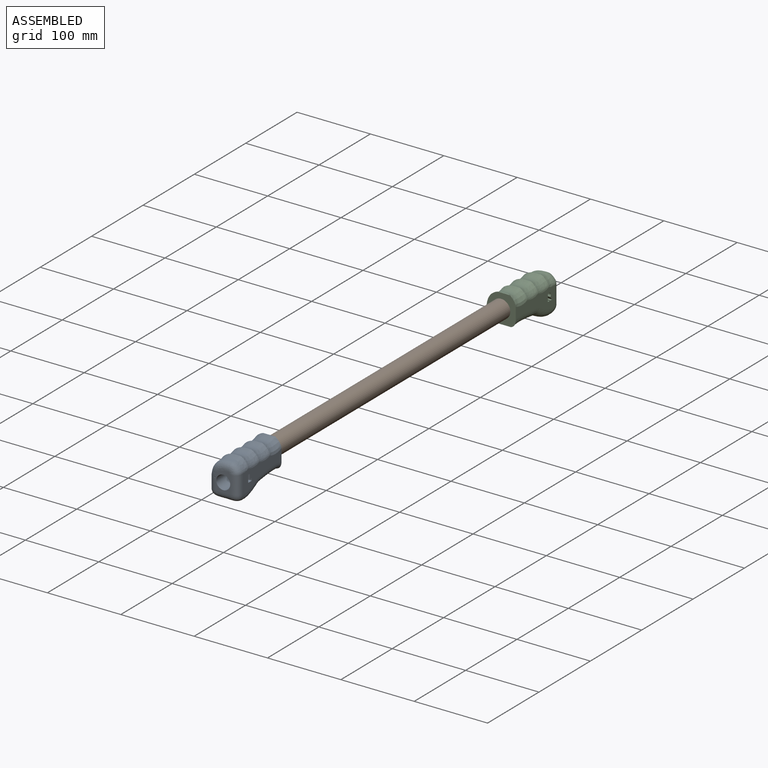
[diagram: assembled view]
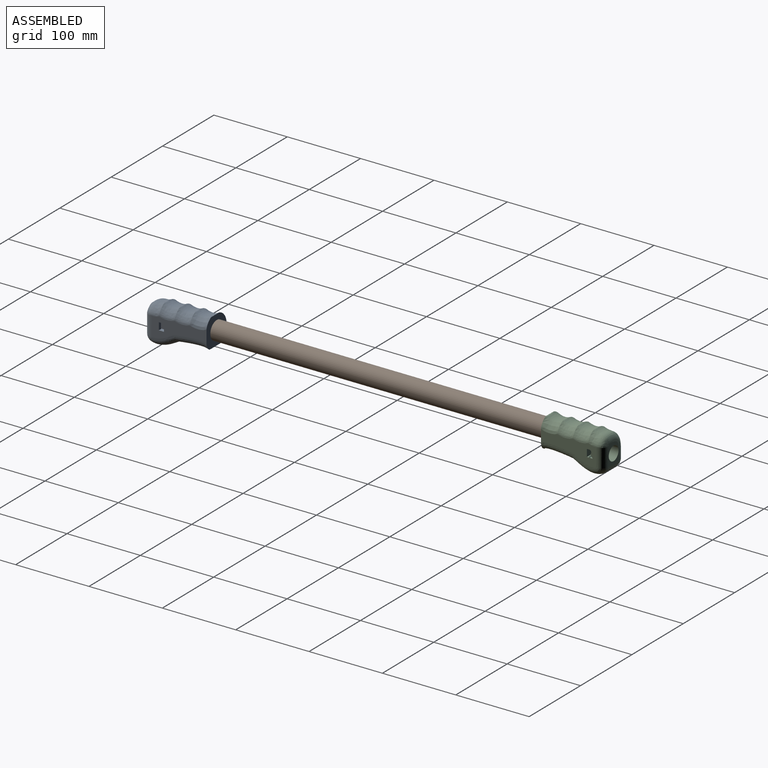
[diagram: assembled view, second angle]
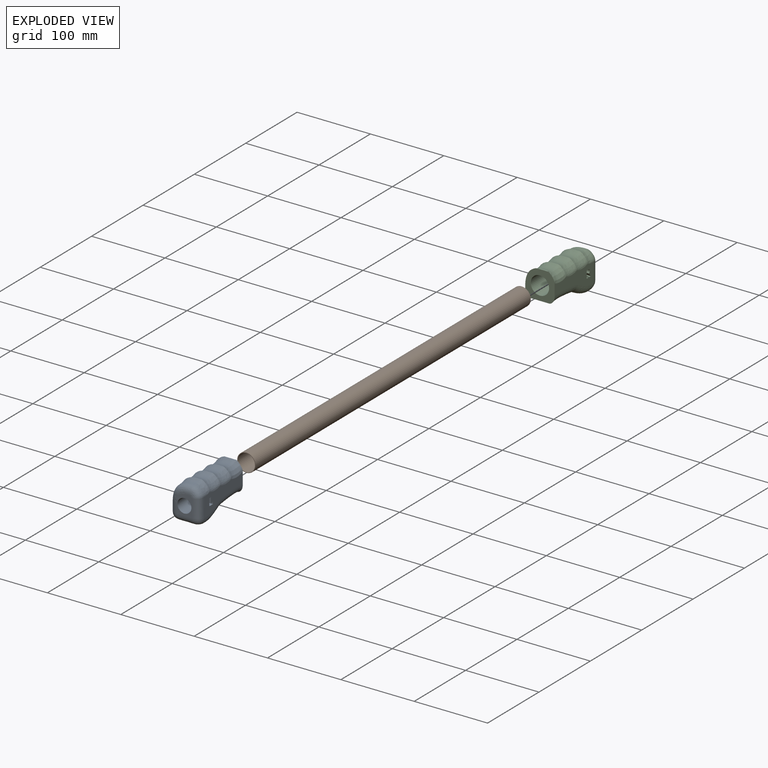
[diagram: exploded view]
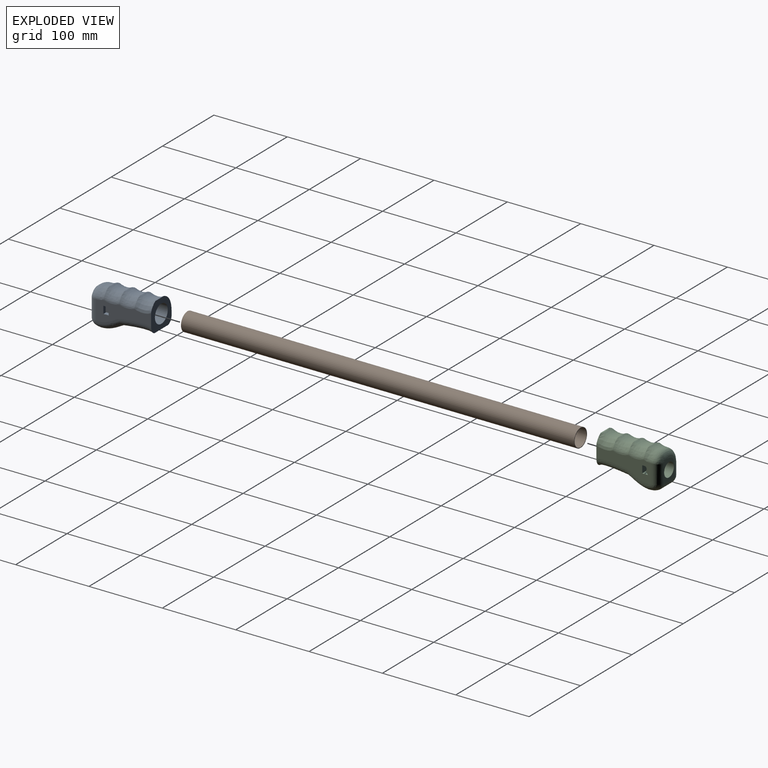
[diagram: exploded view, second angle]
ASSEMBLY  parts=3 mates=2
PART A: 46 faces, bbox 58.4x100.5x42.5 mm
  f0: extruded ~39.45x20mm, area 797.1mm2, adj f1,f2,f6,f39
  f1: bspline ~50.62x12.88mm, area 671.3mm2, adj f0,f5,f14,f28,f39
  f2: bspline ~50.82x13.08mm, area 671.3mm2, adj f0,f5,f15,f38,f39
  f3: cylinder r=21.22mm len=20mm, axis (0,0,-1), area 83.3mm2, adj f4,f13,f20,f24
  f4: plane 17.28x2.91mm, normal (-1,0,0), area 24.5mm2, adj f3,f5,f20,f24
  f5: plane 42.49x41.71mm, normal (0,-1,0), area 908.9mm2, adj f1,f2,f4,f14,f15,f16,f20,f24
  f6: extruded ~45x20mm, area 1063.3mm2, adj f0,f7,f28,f29,f37,f38
  f7: plane 28.03x20.53mm, normal (0,1,0), area 235.2mm2, adj f6,f18,f30,f31,f32,f34,f36
  f8: cylinder r=21.22mm len=10mm, axis (0,0,-1), area 41.7mm2, adj f9,f23,f27,f32
  f9: plane 10.39x1.23mm, normal (-1,0,0), area 8.1mm2, adj f8,f10,f22,f23,f26,f27
  f10: cylinder r=21.22mm len=20mm, axis (0,0,-1), area 83.3mm2, adj f9,f11,f22,f26
  f11: plane 10.38x1.22mm, normal (-1,0,0), area 8.1mm2, adj f10,f12,f21,f22,f25,f26
  f12: cylinder r=21.22mm len=20mm, axis (0,0,-1), area 83.3mm2, adj f11,f13,f21,f25
  f13: plane 10.39x1.23mm, normal (-1,0,0), area 8.1mm2, adj f3,f12,f20,f21,f24,f25
  f14: plane 76.37x17.34mm, normal (0,0,1), area 449.8mm2, adj f1,f5,f20,f21,f22,f23,f28,f30
  f15: plane 76.41x29.96mm, normal (0,0,-1), area 1319.6mm2, adj f2,f5,f24,f25,f26,f27,f36,f38
  f16: cylinder r=12.5mm len=40mm, axis (0,-1,0), area 3141.6mm2, adj f5,f17
  f17: plane 25x25mm, normal (0,-1,0), area 490.9mm2, adj f16
  f18: cylinder r=9.5mm len=35mm, axis (0,1,0), area 2044mm2, adj f7,f19,f40,f41,f42,f43,f44,f45
  f19: plane 19x19mm, normal (0,1,0), area 283.5mm2, adj f18
  f20: bspline ~60.07x31.92mm, area 893.1mm2, adj f3,f4,f5,f13,f14,f21
  f21: bspline ~61.29x29.68mm, area 832mm2, adj f11,f12,f13,f14,f20,f22
  f22: bspline ~59.58x29.87mm, area 832.1mm2, adj f9,f10,f11,f14,f21,f23
  f23: bspline ~26.71x24mm, area 416mm2, adj f8,f9,f14,f22,f31
  f24: bspline ~34.18x15.35mm, area 417.8mm2, adj f3,f4,f5,f13,f15,f25
  f25: bspline ~49.03x18.79mm, area 391.3mm2, adj f11,f12,f13,f15,f24,f26
  f26: bspline ~32.51x14.71mm, area 391.3mm2, adj f9,f10,f11,f15,f25,f27
  f27: bspline ~16.25x14.71mm, area 195.6mm2, adj f8,f9,f15,f26,f33,f34,f35
  f28: bspline ~39.99x20.9mm, area 653mm2, adj f1,f6,f14,f29
  f29: bspline ~10x10mm, area 74.3mm2, adj f6,f28,f30
  f30: bspline ~13.5x10mm, area 219mm2, adj f7,f14,f29,f31
  f31: bspline ~24x24mm, area 545.2mm2, adj f7,f23,f30,f32
  f32: bspline ~10x10mm, area 57.8mm2, adj f7,f8,f31,f33
  f33: bspline ~10x10mm, area 24.8mm2, adj f27,f32,f34
  f34: bspline ~12.05x12.05mm, area 132.6mm2, adj f7,f27,f33,f35
  f35: bspline ~10x10mm, area 24.8mm2, adj f27,f34,f36
  f36: bspline ~27.04x10mm, area 406.6mm2, adj f7,f15,f35,f37
  f37: bspline ~10x10mm, area 74.3mm2, adj f6,f36,f38
  f38: bspline ~39.99x20.92mm, area 653mm2, adj f2,f6,f15,f37
  f39: plane 27.42x0.8mm, normal (1,0,0), area 13.7mm2, adj f0,f1,f2,f5
  f40: plane 10.94x7mm, normal (-1,0,0), area 76.6mm2, adj f15,f18,f41,f45
  f41: plane 10.94x3mm, normal (0,1,0), area 31.9mm2, adj f15,f18,f40,f42
  f42: plane 10.5x4mm, normal (1,0,0), area 42mm2, adj f15,f18,f41,f43
  f43: plane 13.74x7mm, normal (0,1,0), area 80.6mm2, adj f15,f18,f42,f44
  f44: plane 13.74x3mm, normal (1,0,0), area 41.2mm2, adj f15,f18,f43,f45
  f45: plane 13.74x10mm, normal (0,-1,0), area 112.5mm2, adj f15,f18,f40,f44
PART B: 4 faces, bbox 25x536x25 mm
  f0: cylinder r=11.75mm len=536mm, axis (0,1,0), area 39571.5mm2, adj f2,f3
  f1: cylinder r=12.5mm len=536mm, axis (0,1,0), area 42097.3mm2, adj f2,f3
  f2: plane 25x25mm, normal (0,-1,0), area 57.1mm2, adj f0,f1
  f3: plane 25x25mm, normal (0,1,0), area 57.1mm2, adj f0,f1
PART C: 49 faces, bbox 58.2x100.4x42.4 mm
  f0: plane 76.41x29.96mm, normal (0,0,1), area 1305.5mm2, adj f3,f7,f21,f22,f23,f24,f25,f27
  f1: cylinder r=9.5mm len=35mm, axis (0,1,0), area 2026.9mm2, adj f9,f38,f40,f41,f42,f43,f44,f45
  f2: extruded ~39.45x20mm, area 797.1mm2, adj f3,f4,f8,f39
  f3: bspline ~50.62x12.88mm, area 671.3mm2, adj f0,f2,f7,f25,f39
  f4: bspline ~50.82x13.08mm, area 671.3mm2, adj f2,f7,f16,f35,f39
  f5: cylinder r=21.22mm len=20mm, axis (0,0,-1), area 83.3mm2, adj f6,f15,f17,f21
  f6: plane 17.28x2.92mm, normal (-1,0,0), area 24.4mm2, adj f5,f7,f17,f21
  f7: plane 42.36x41.58mm, normal (0,-1,0), area 909.8mm2, adj f0,f3,f4,f6,f16,f17,f21,f36
  f8: extruded ~45x20mm, area 1063.3mm2, adj f2,f9,f25,f26,f34,f35
  f9: plane 28.03x20.53mm, normal (0,1,0), area 235.9mm2, adj f1,f8,f27,f29,f31,f32,f33
  f10: cylinder r=21.22mm len=10mm, axis (0,0,-1), area 41.7mm2, adj f11,f20,f24,f31
  f11: plane 10.39x1.23mm, normal (-1,0,0), area 8.1mm2, adj f10,f12,f19,f20,f23,f24
  f12: cylinder r=21.22mm len=20mm, axis (0,0,-1), area 83.3mm2, adj f11,f13,f19,f23
  f13: plane 10.38x1.22mm, normal (-1,0,0), area 8.1mm2, adj f12,f14,f18,f19,f22,f23
  f14: cylinder r=21.22mm len=20mm, axis (0,0,-1), area 83.3mm2, adj f13,f15,f18,f22
  f15: plane 10.39x1.23mm, normal (-1,0,0), area 8.1mm2, adj f5,f14,f17,f18,f21,f22
  f16: plane 76.36x17.34mm, normal (0,0,-1), area 449.7mm2, adj f4,f7,f17,f18,f19,f20,f33,f35
  f17: bspline ~60.07x31.92mm, area 893.4mm2, adj f5,f6,f7,f15,f16,f18
  f18: bspline ~61.29x29.68mm, area 832.1mm2, adj f13,f14,f15,f16,f17,f19
  f19: bspline ~59.58x29.87mm, area 832.1mm2, adj f11,f12,f13,f16,f18,f20
  f20: bspline ~26.71x24mm, area 416.1mm2, adj f10,f11,f16,f19,f32
  f21: bspline ~34.18x15.35mm, area 417.8mm2, adj f0,f5,f6,f7,f15,f22
  f22: bspline ~49.03x18.79mm, area 391.3mm2, adj f0,f13,f14,f15,f21,f23
  f23: bspline ~32.51x14.71mm, area 391.3mm2, adj f0,f11,f12,f13,f22,f24
  f24: bspline ~16.25x14.71mm, area 195.6mm2, adj f0,f10,f11,f23,f28,f29,f30
  f25: bspline ~39.99x20.9mm, area 653mm2, adj f0,f3,f8,f26
  f26: bspline ~10x10mm, area 74.3mm2, adj f8,f25,f27
  f27: bspline ~25.92x10mm, area 406.6mm2, adj f0,f9,f26,f28
  f28: bspline ~10x10mm, area 24.8mm2, adj f24,f27,f29
  f29: bspline ~12.05x12.05mm, area 132.6mm2, adj f9,f24,f28,f30
  f30: bspline ~10x10mm, area 24.8mm2, adj f24,f29,f31
  f31: bspline ~10x10mm, area 57.8mm2, adj f9,f10,f30,f32
  f32: bspline ~24x24mm, area 545.2mm2, adj f9,f20,f31,f33
  f33: bspline ~14.17x10mm, area 219mm2, adj f9,f16,f32,f34
  f34: bspline ~10x10mm, area 74.3mm2, adj f8,f33,f35
  f35: bspline ~39.99x20.92mm, area 653mm2, adj f4,f8,f16,f34
  f36: cylinder r=12.5mm len=40mm, axis (0,-1,0), area 3141.6mm2, adj f7,f37
  f37: plane 25x25mm, normal (0,-1,0), area 490.9mm2, adj f36
  f38: plane 19x19mm, normal (0,1,0), area 283.5mm2, adj f1
  f39: plane 27.42x0.8mm, normal (1,0,0), area 13.7mm2, adj f2,f3,f4,f7
  f40: plane 13.74x3mm, normal (1,0,0), area 41.2mm2, adj f0,f1,f41,f48
  f41: plane 13.74x10mm, normal (0,1,0), area 112.5mm2, adj f0,f1,f40,f42
  f42: plane 10.94x3mm, normal (-1,0,0), area 32.8mm2, adj f0,f1,f41,f43
  f43: plane 10.94x1.5mm, normal (0,-1,0), area 16.1mm2, adj f0,f1,f42,f44
  f44: plane 10.95x1.51mm, normal (-0.6,0.8,0), area 20.1mm2, adj f0,f1,f43,f45
  f45: plane 10.94x3.83mm, normal (-1,0,0), area 41.9mm2, adj f0,f1,f44,f46
  f46: plane 10.94x0.9mm, normal (0.64,-0.77,0), area 12.7mm2, adj f0,f1,f45,f47
  f47: plane 10.71x3.54mm, normal (0.6,-0.8,0), area 46.6mm2, adj f0,f1,f46,f48
  f48: cylinder r=3mm len=13.74mm, axis (0,0,1), area 95mm2, adj f0,f1,f40,f47
PLACE A rot(axis=(-0.71,0,0.71),180deg) t=(-165.61,-221.85,152.66)mm
PLACE B t=(-165.61,6.15,152.66)mm
PLACE C rot(axis=(0,1,0),90deg) t=(-165.61,234.15,152.66)mm
MATE planar C.f36 <-> B.f0  axis (0,-1,0) through (-165.61,274.15,152.66)mm
MATE planar A.f16 <-> B.f0  axis (0,1,0) through (-165.61,-261.85,152.66)mm
